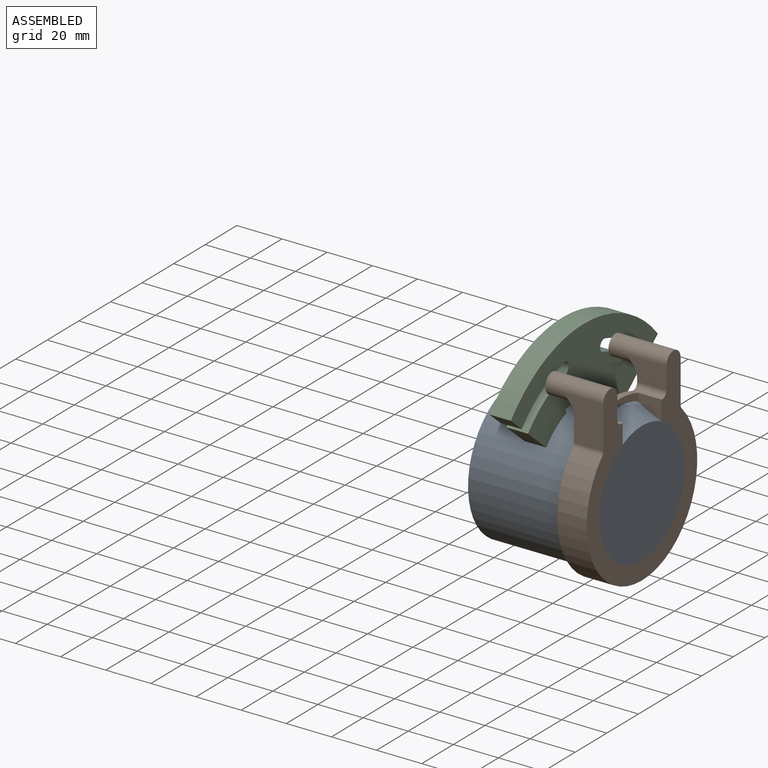
[diagram: assembled view]
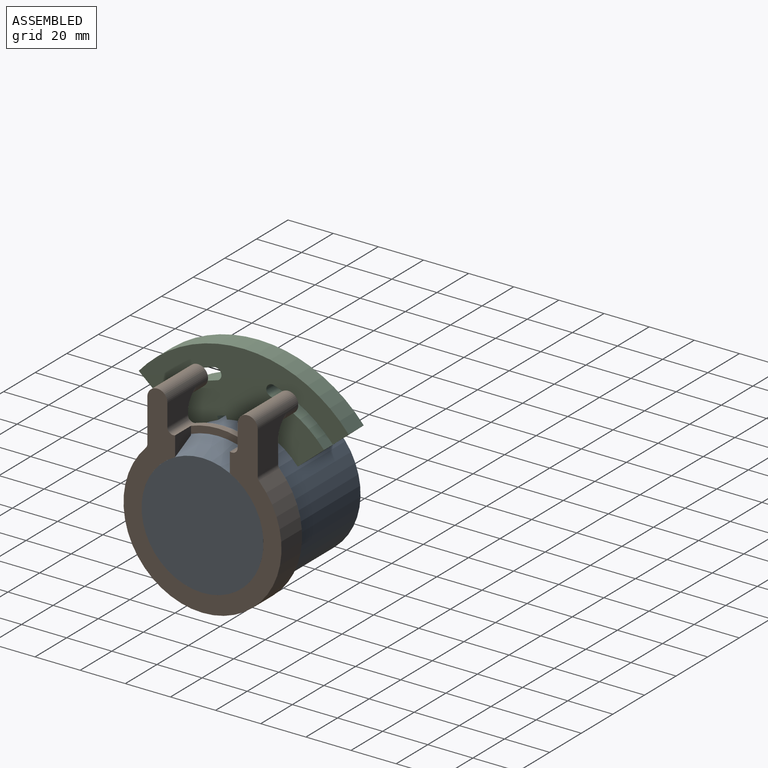
[diagram: assembled view, second angle]
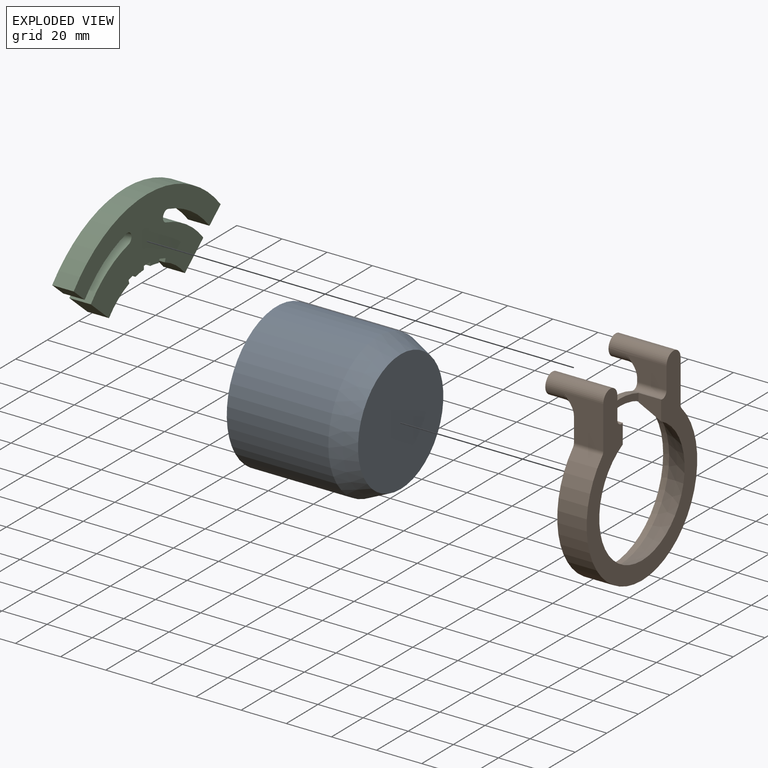
[diagram: exploded view]
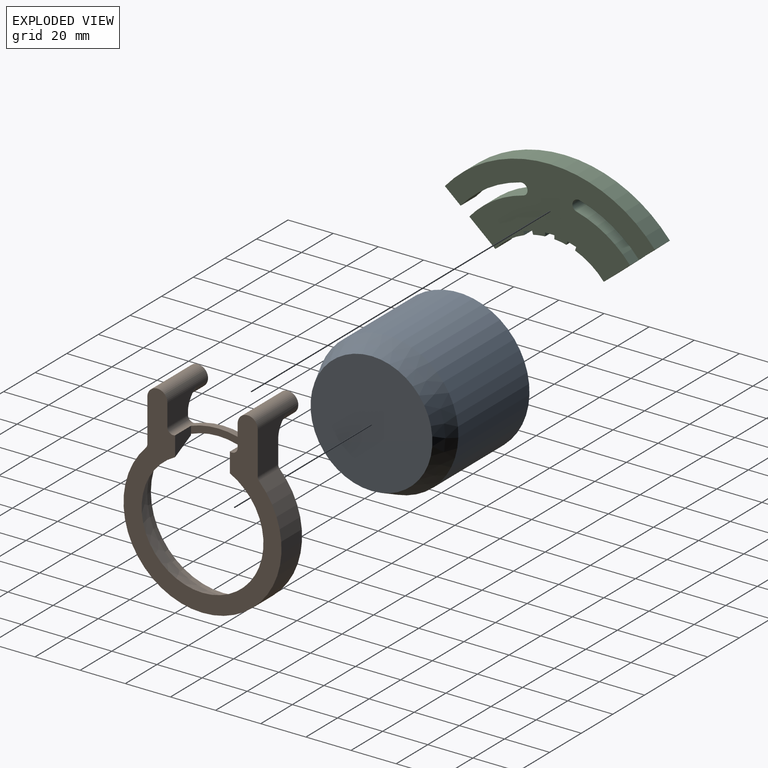
[diagram: exploded view, second angle]
ASSEMBLY  parts=3 mates=3
PART A: 4 faces, bbox 55x63x63 mm
  f0: plane 54x54mm, normal (1,0,0), area 2290.2mm2, adj f1
  f1: cone r=31.5mm half-angle=24.2deg, axis (-1,0,0), area 2015.3mm2, adj f0,f2
  f2: cylinder r=31.5mm len=63mm, axis (1,0,0), area 8906.4mm2, adj f1,f3
  f3: plane 63x63mm, normal (-1,0,0), area 3117.2mm2, adj f2
PART B: 28 faces, bbox 25.9x70.2x84.6 mm
  f0: plane 24.27x5.39mm, normal (-1,0,0), area 74.5mm2, adj f1,f20,f21,f23
  f1: cylinder r=35mm len=24.27mm, axis (-1,0,0), area 74.3mm2, adj f0,f5,f7,f15
  f2: cylinder r=35mm len=70mm, axis (-1,0,0), area 2128.9mm2, adj f3,f5,f6,f14
  f3: plane 84.45x70mm, normal (-1,0,0), area 1720mm2, adj f2,f4,f6,f7,f8,f9,f10,f11
  f4: cone r=27mm half-angle=24.2deg, axis (1,0,0), area 1739.6mm2, adj f3,f20,f21,f22
  f5: plane 71.58x70mm, normal (1,0,0), area 767.7mm2, adj f1,f2,f6,f7,f8,f10,f11,f13
  f6: cylinder r=2.54mm len=13mm, axis (-1,0,0), area 25.4mm2, adj f2,f3,f5,f10
  f7: cylinder r=2.54mm len=13mm, axis (-1,0,0), area 63.6mm2, adj f1,f3,f5,f8,f20
  f8: plane 18.08x9.79mm, normal (0,-1,0), area 141.8mm2, adj f3,f5,f7,f9,f18
  f9: cylinder r=4.45mm len=25.7mm, axis (-1,0,0), area 465.3mm2, adj f3,f8,f10,f17,f18
  f10: plane 18.9x18.08mm, normal (0,1,0), area 260.3mm2, adj f3,f5,f6,f9,f18
  f11: plane 18.9x18.08mm, normal (0,-1,0), area 260.3mm2, adj f3,f5,f12,f14,f19
  f12: cylinder r=4.45mm len=25.7mm, axis (-1,0,0), area 465.3mm2, adj f3,f11,f13,f16,f19
  f13: plane 18.08x9.79mm, normal (0,1,0), area 141.8mm2, adj f3,f5,f12,f15,f19
  f14: cylinder r=2.54mm len=13mm, axis (-1,0,0), area 25.4mm2, adj f2,f3,f5,f11
  f15: cylinder r=2.54mm len=13mm, axis (-1,0,0), area 63.6mm2, adj f1,f3,f5,f13,f21
  f16: plane 8.89x8.89mm, normal (1,0,0), area 49.1mm2, adj f12,f26
  f17: plane 8.89x8.89mm, normal (1,0,0), area 49.1mm2, adj f9,f24
  f18: torus R=9.53mm, axis (-1,0,0), area 84.1mm2, adj f5,f8,f9,f10
  f19: torus R=9.53mm, axis (-1,0,0), area 84.1mm2, adj f5,f11,f12,f13
  f20: plane 10.18x8.88mm, normal (0,-1,0), area 62.2mm2, adj f0,f3,f4,f7,f22
  f21: plane 10.18x8.88mm, normal (0,1,0), area 62.2mm2, adj f0,f3,f4,f15,f22
  f22: plane 64x61.61mm, normal (1,0,0), area 87.4mm2, adj f4,f20,f21,f23
  f23: cylinder r=32mm len=64mm, axis (1,0,0), area 603.2mm2, adj f0,f5,f22
  f24: cylinder r=2.03mm len=25.4mm, axis (1,0,0), area 324.3mm2, adj f17,f25
  f25: plane 4.06x4.06mm, normal (1,0,0), area 13mm2, adj f24
  f26: cylinder r=2.03mm len=25.4mm, axis (1,0,0), area 324.3mm2, adj f16,f27
  f27: plane 4.06x4.06mm, normal (1,0,0), area 13mm2, adj f26
PART C: 26 faces, bbox 9.5x93x40.6 mm
  f0: cylinder r=51.77mm len=26.35mm, axis (-1,0,0), area 301.3mm2, adj f1,f23,f24,f25
  f1: cylinder r=2.54mm len=9.53mm, axis (-1,0,0), area 76mm2, adj f0,f2,f24,f25
  f2: cylinder r=46.69mm len=23.77mm, axis (-1,0,0), area 271.7mm2, adj f1,f3,f24,f25
  f3: plane 11.58x9.82mm, normal (0,-0.65,-0.76), area 144.6mm2, adj f2,f4,f24,f25
  f4: cylinder r=31.5mm len=12.79mm, axis (-1,0,0), area 150.8mm2, adj f3,f5,f24,f25
  f5: plane 9.53x1.52mm, normal (0,0.96,0.3), area 15.1mm2, adj f4,f6,f24,f25
  f6: plane 9.53x3.88mm, normal (0,0.3,-0.96), area 38.7mm2, adj f5,f7,f24,f25
  f7: plane 9.53x1.52mm, normal (0,-0.96,-0.3), area 15.1mm2, adj f6,f8,f24,f25
  f8: cylinder r=31.5mm len=9.53mm, axis (-1,0,0), area 51.4mm2, adj f7,f9,f24,f25
  f9: plane 9.53x1.59mm, normal (0,1,0), area 15.1mm2, adj f8,f10,f24,f25
  f10: plane 9.53x4.06mm, normal (0,0,-1), area 38.7mm2, adj f9,f11,f24,f25
  f11: plane 9.53x1.59mm, normal (0,-1,0), area 15.1mm2, adj f10,f12,f24,f25
  f12: cylinder r=31.5mm len=9.53mm, axis (-1,0,0), area 51.4mm2, adj f11,f13,f24,f25
  f13: plane 9.53x1.52mm, normal (0,0.96,-0.3), area 15.1mm2, adj f12,f14,f24,f25
  f14: plane 9.53x3.88mm, normal (0,-0.3,-0.96), area 38.7mm2, adj f13,f15,f24,f25
  f15: plane 9.53x1.52mm, normal (0,-0.96,0.3), area 15.1mm2, adj f14,f16,f24,f25
  f16: cylinder r=31.5mm len=12.79mm, axis (-1,0,0), area 150.8mm2, adj f15,f17,f24,f25
  f17: plane 11.58x9.82mm, normal (0,0.65,-0.76), area 144.6mm2, adj f16,f18,f24,f25
  f18: cylinder r=46.69mm len=23.77mm, axis (-1,0,0), area 271.7mm2, adj f17,f19,f24,f25
  f19: cylinder r=2.54mm len=9.53mm, axis (-1,0,0), area 76mm2, adj f18,f20,f24,f25
  f20: cylinder r=51.77mm len=26.35mm, axis (-1,0,0), area 301.3mm2, adj f19,f21,f24,f25
  f21: plane 9.53x7.02mm, normal (0,0.65,-0.76), area 87.7mm2, adj f20,f22,f24,f25
  f22: cylinder r=60.97mm len=93.02mm, axis (-1,0,0), area 1007.8mm2, adj f21,f23,f24,f25
  f23: plane 9.53x7.02mm, normal (0,-0.65,-0.76), area 87.7mm2, adj f0,f22,f24,f25
  f24: plane 93.02x40.6mm, normal (1,0,0), area 2019.7mm2, adj f0,f1,f2,f3,f4,f5,f6,f7
  f25: plane 93.02x40.6mm, normal (-1,0,0), area 2019.7mm2, adj f0,f1,f2,f3,f4,f5,f6,f7
PLACE A t=(-37.02,-9.2,-5.56)mm fixed
PLACE B rot(axis=(0,0,1),180deg) t=(17.98,-9.2,-5.56)mm
PLACE C rot(axis=(-1,0,0),0.4deg) t=(-10.9,-9.1,10.67)mm
MATE cylindrical A.f1 <-> B.f1  axis (1,0,0) through (-14.52,-9.2,-5.56)mm
MATE planar A.f1 <-> B.f3  axis (1,0,0) through (17.98,-9.2,-5.56)mm
MATE planar C.f24 <-> B.f12  axis (1,0,0) through (-7.72,-22.01,44.6)mm
